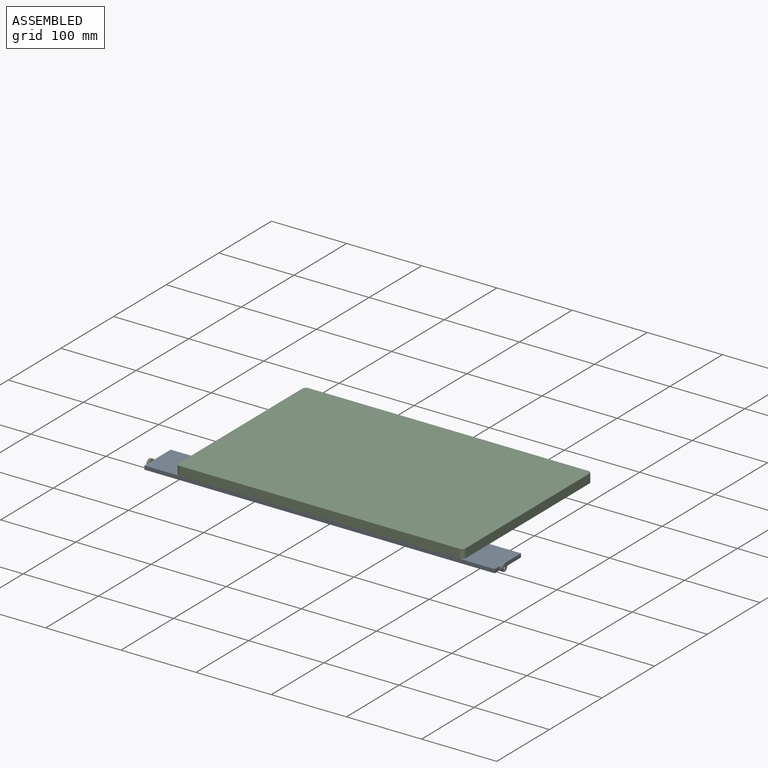
[diagram: assembled view]
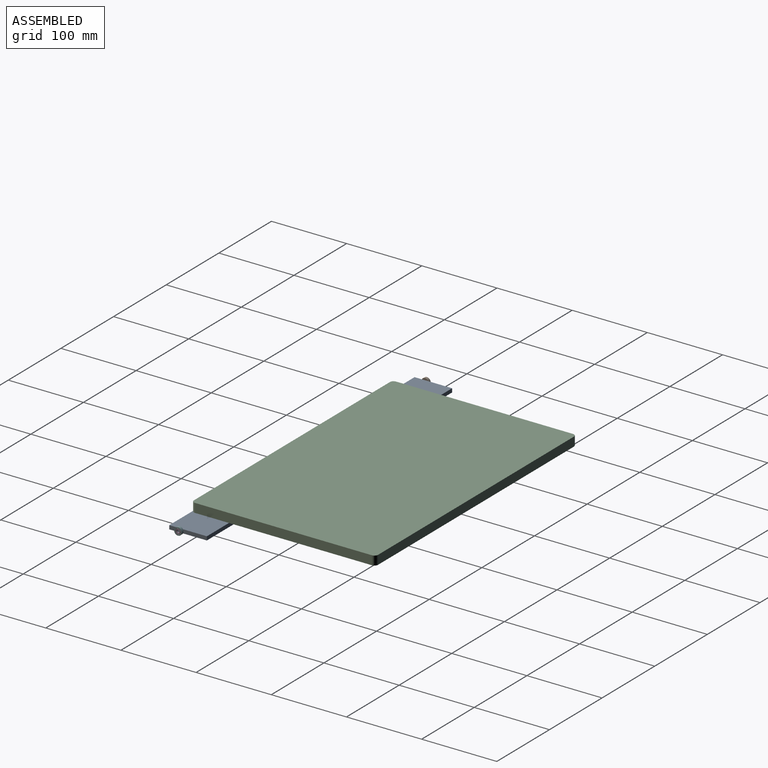
[diagram: assembled view, second angle]
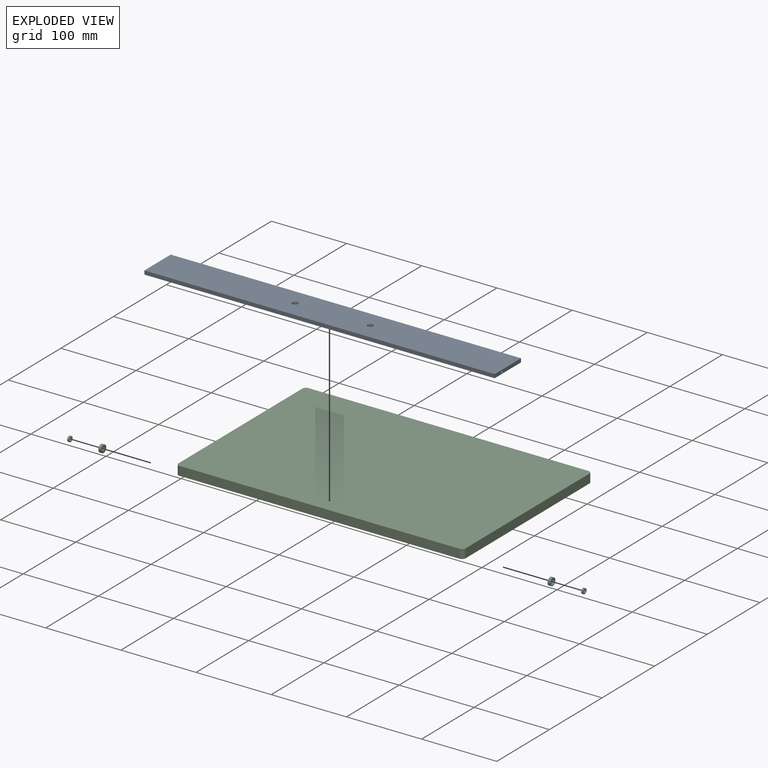
[diagram: exploded view]
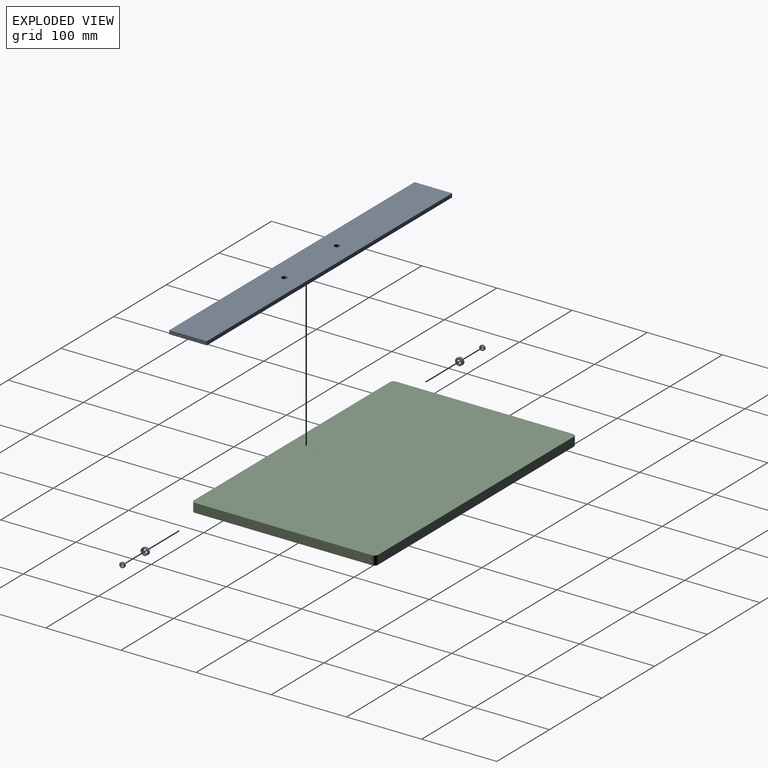
[diagram: exploded view, second angle]
ASSEMBLY  parts=6 mates=5
PART A: 12 faces, bbox 466x50x5 mm
  f0: plane 466x5mm, normal (0,-1,0), area 2330mm2, adj f1,f3,f4,f5
  f1: plane 50x5mm, normal (1,0,0), area 242mm2, adj f0,f2,f4,f5,f11
  f2: plane 466x5mm, normal (0,1,0), area 2330mm2, adj f1,f3,f4,f5
  f3: plane 50x5mm, normal (-1,0,0), area 242mm2, adj f0,f2,f4,f5,f9
  f4: plane 466x50mm, normal (0,0,1), area 23211.6mm2, adj f0,f1,f2,f3,f6,f7
  f5: plane 466x50mm, normal (0,0,-1), area 23211.6mm2, adj f0,f1,f2,f3,f6,f7
  f6: cylinder r=3.75mm len=7.5mm, axis (0,0,-1), area 117.8mm2, adj f4,f5
  f7: cylinder r=3.75mm len=7.5mm, axis (0,0,-1), area 117.8mm2, adj f4,f5
  f8: cone r=0mm half-angle=59deg, axis (-1,0,0), area 9.4mm2, adj f9
  f9: cylinder r=1.6mm len=10mm, axis (-1,0,0), area 100.5mm2, adj f3,f8
  f10: cone r=0mm half-angle=59deg, axis (1,0,0), area 9.4mm2, adj f11
  f11: cylinder r=1.6mm len=10mm, axis (1,0,0), area 100.5mm2, adj f1,f10
PART B: 6 faces, bbox 10x10x3.5 mm
  f0: cylinder r=5mm len=10mm, axis (0,0,1), area 110mm2, adj f1,f2
  f1: plane 10x10mm, normal (0,0,1), area 34.4mm2, adj f0,f5
  f2: plane 10x10mm, normal (0,0,-1), area 58.9mm2, adj f0,f3
  f3: cylinder r=2.5mm len=5mm, axis (0,0,1), area 15.7mm2, adj f2,f4
  f4: plane 7.5x7.5mm, normal (0,0,1), area 24.5mm2, adj f3,f5
  f5: cylinder r=3.75mm len=7.5mm, axis (0,0,1), area 58.9mm2, adj f1,f4
PART C: 26 faces, bbox 382x245x18 mm
  f0: plane 382x245mm, normal (0,0,-1), area 93414.6mm2, adj f1,f2,f3,f4,f6,f7,f8,f9
  f1: plane 372x12mm, normal (0,-1,0), area 4464mm2, adj f0,f5,f6,f7
  f2: plane 235x12mm, normal (1,0,0), area 2820mm2, adj f0,f5,f7,f8
  f3: plane 372x12mm, normal (0,1,0), area 4464mm2, adj f0,f5,f8,f9
  f4: plane 235x12mm, normal (-1,0,0), area 2820mm2, adj f0,f5,f6,f9
  f5: plane 382x245mm, normal (0,0,1), area 93568.5mm2, adj f1,f2,f3,f4,f6,f7,f8,f9
  f6: cylinder r=5mm len=12mm, axis (0,0,1), area 94.2mm2, adj f0,f1,f4,f5
  f7: cylinder r=5mm len=12mm, axis (0,0,-1), area 94.2mm2, adj f0,f1,f2,f5
  f8: cylinder r=5mm len=12mm, axis (0,0,1), area 94.2mm2, adj f0,f2,f3,f5
  f9: cylinder r=5mm len=12mm, axis (0,0,-1), area 94.2mm2, adj f0,f3,f4,f5
  f10: cylinder r=3.5mm len=7mm, axis (0,0,-1), area 131.9mm2, adj f0,f12
  f11: cylinder r=1.6mm len=6mm, axis (0,0,-1), area 60.3mm2, adj f12,f13
  f12: plane 7x7mm, normal (0,0,-1), area 30.4mm2, adj f10,f11
  f13: plane 3.2x3.2mm, normal (0,0,-1), area 8mm2, adj f11
  f14: cylinder r=3.5mm len=7mm, axis (0,0,-1), area 131.9mm2, adj f0,f16
  f15: cylinder r=1.6mm len=6mm, axis (0,0,-1), area 60.3mm2, adj f16,f17
  f16: plane 7x7mm, normal (0,0,-1), area 30.4mm2, adj f14,f15
  f17: plane 3.2x3.2mm, normal (0,0,-1), area 8mm2, adj f15
  f18: cylinder r=3.5mm len=7mm, axis (0,0,-1), area 131.9mm2, adj f0,f20
  f19: cylinder r=1.6mm len=6mm, axis (0,0,-1), area 60.3mm2, adj f20,f21
  f20: plane 7x7mm, normal (0,0,-1), area 30.4mm2, adj f18,f19
  f21: plane 3.2x3.2mm, normal (0,0,-1), area 8mm2, adj f19
  f22: cylinder r=3.5mm len=7mm, axis (0,0,-1), area 131.9mm2, adj f0,f24
  f23: cylinder r=1.6mm len=6mm, axis (0,0,-1), area 60.3mm2, adj f24,f25
  f24: plane 7x7mm, normal (0,0,-1), area 30.4mm2, adj f22,f23
  f25: plane 3.2x3.2mm, normal (0,0,-1), area 8mm2, adj f23
PART D: 16 faces, bbox 2.5x7.6x7.6 mm
  f0: plane 5.15x5.15mm, normal (-1,0,0), area 7.2mm2, adj f1,f15
  f1: torus R=2.08mm, axis (1,0,0), area 1.6mm2, adj f0,f2
  f2: cylinder r=2mm len=4mm, axis (-1,0,0), area 29.4mm2, adj f1,f3
  f3: torus R=2.08mm, axis (1,0,0), area 1.6mm2, adj f2,f4
  f4: plane 5.15x5.15mm, normal (1,0,0), area 7.2mm2, adj f3,f5
  f5: cylinder r=2.58mm len=5.15mm, axis (-1,0,0), area 4.1mm2, adj f4,f6
  f6: plane 6.4x6.4mm, normal (1,0,0), area 11.3mm2, adj f5,f7
  f7: cylinder r=3.2mm len=6.4mm, axis (-1,0,0), area 5.1mm2, adj f6,f8
  f8: plane 6.84x6.84mm, normal (1,0,0), area 4.6mm2, adj f7,f9
  f9: torus R=3.42mm, axis (1,0,0), area 2.7mm2, adj f8,f10
  f10: cylinder r=3.5mm len=7mm, axis (-1,0,0), area 51.5mm2, adj f9,f11
  f11: torus R=3.42mm, axis (1,0,0), area 2.7mm2, adj f10,f12
  f12: plane 6.84x6.84mm, normal (-1,0,0), area 4.6mm2, adj f11,f13
  f13: cylinder r=3.2mm len=6.4mm, axis (-1,0,0), area 5.1mm2, adj f12,f14
  f14: plane 6.4x6.4mm, normal (-1,0,0), area 11.3mm2, adj f13,f15
  f15: cylinder r=2.58mm len=5.15mm, axis (-1,0,0), area 4.1mm2, adj f0,f14
PART E: same geometry as D
PART F: same geometry as B
PLACE A rot(axis=(1,0,0),180deg) t=(0,-97.63,0)mm
PLACE B rot(axis=(0.71,0,-0.71),180deg) t=(-233,-108.63,-2.5)mm
PLACE C t=(0,-0.13,0)mm
PLACE D t=(234,-108.63,-2.5)mm
PLACE E rot(axis=(0,1,0),180deg) t=(-234,-108.63,-2.5)mm
PLACE F rot(axis=(0.71,0,0.71),180deg) t=(233,-108.63,-2.5)mm
MATE fastened F.f3 <-> A.f8  axis (-1,0,0) through (233,-108.63,-2.5)mm
MATE fastened C.f22 <-> A.f6  axis (0,0,-1) through (50,-97.63,0)mm
MATE fastened E.f1 <-> B.f3  axis (1,0,0) through (-234,-108.63,-2.5)mm
MATE fastened D.f1 <-> F.f3  axis (-1,0,0) through (234,-108.63,-2.5)mm
MATE fastened B.f3 <-> A.f8  axis (1,0,0) through (-233,-108.63,-2.5)mm
